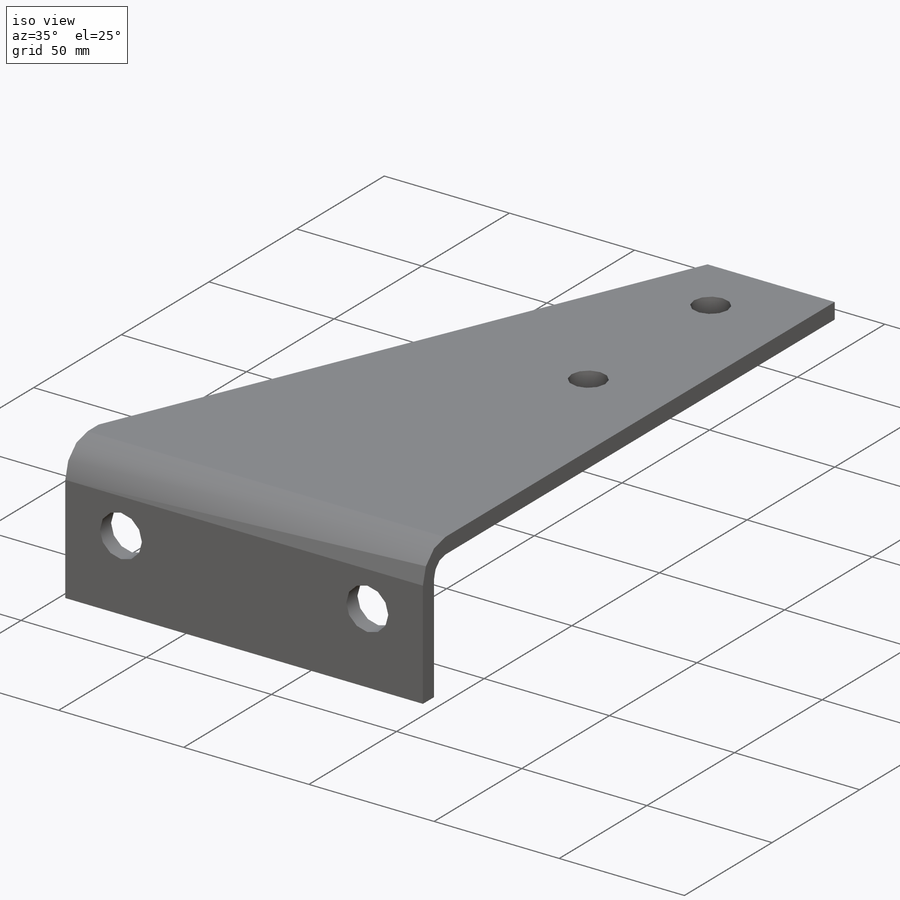
[diagram: iso view]
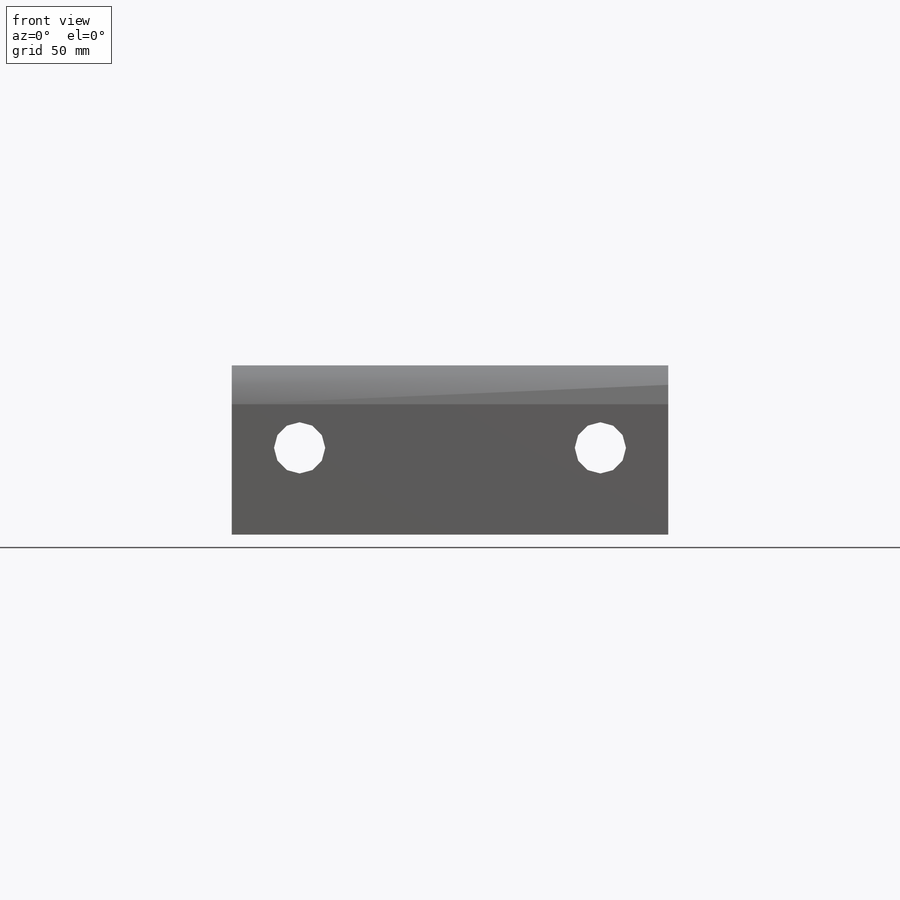
[diagram: front view]
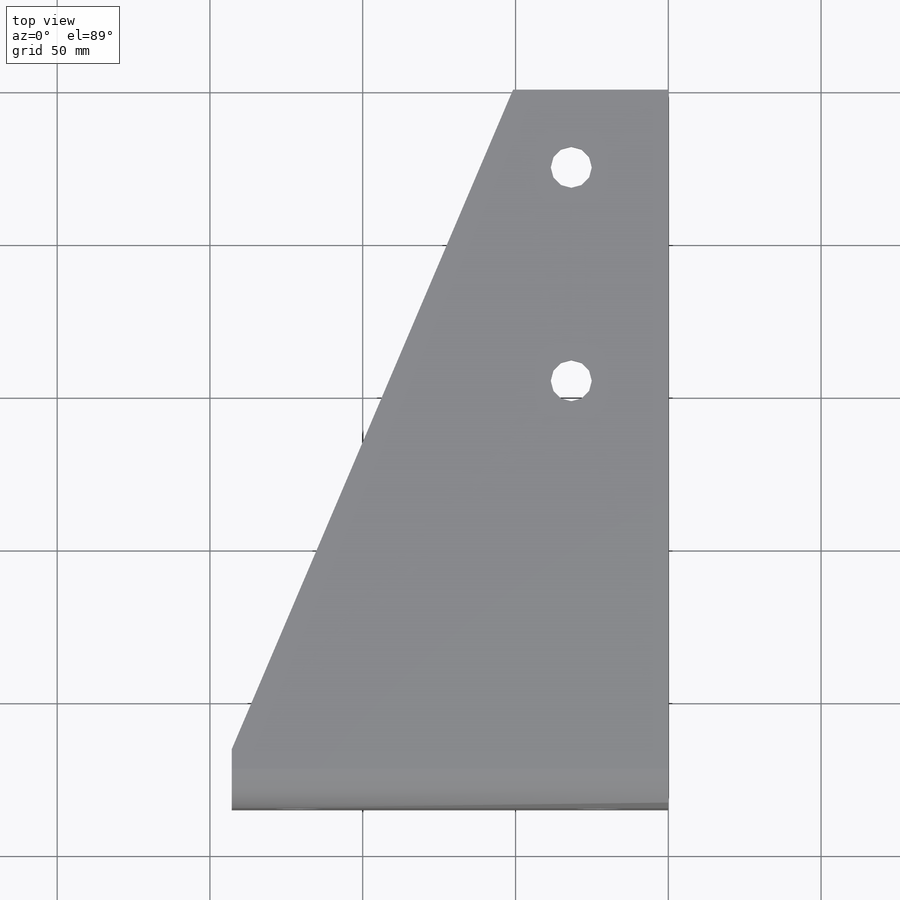
[diagram: top view]
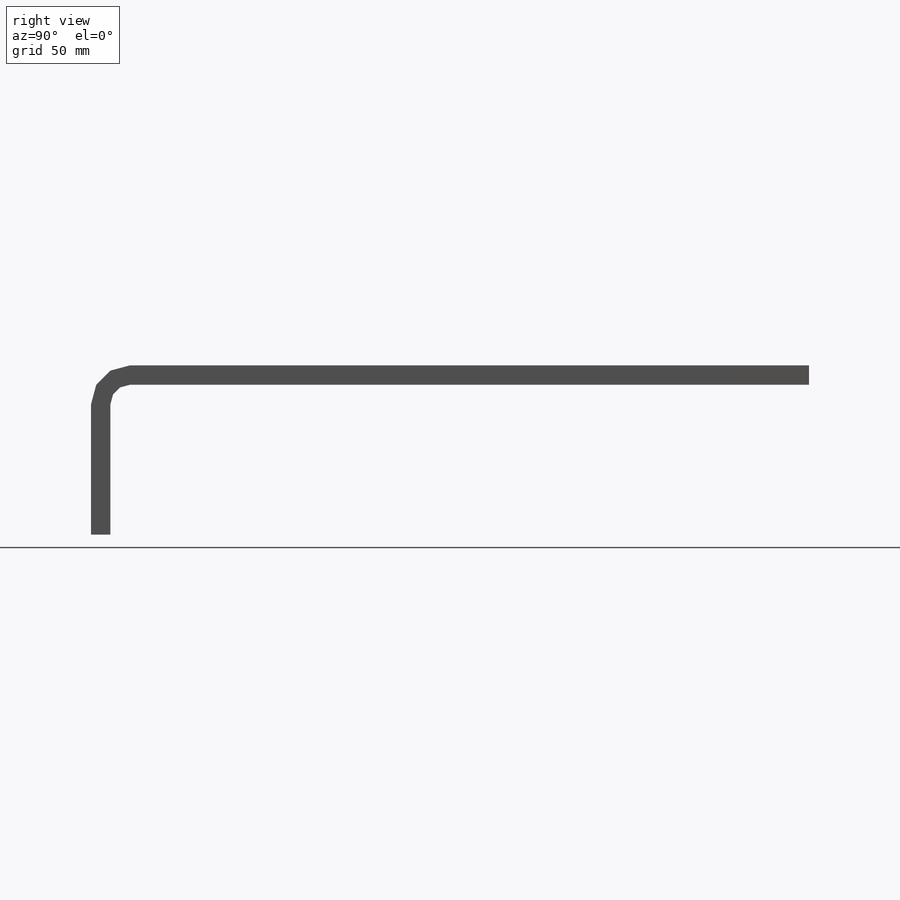
[diagram: right view]
SOLIDWORKS PART (.sldprt)
format: sldprt  version: not decoded by parser v0  size: 304,640 bytes
history: native  units: mm
features: sketch x4, cut_extrude x3, material x1, plane x1, extrude x1, mirror x1 (+11 scaffold rows collapsed)
feature tree (22):
  scaffold x11  (default folders/planes/origin — collapsed)
  material  "ASTM A36"
  plane  "Side"
  sketch  "Sketch1"  dims[c1.D5=6.35mm c1.D6=12.7mm c1.D1=6.35mm c1.D2=228.6mm c1.D3=6.35mm c1.D4=49.022mm c2.D5=133.35mm c3.D5=90.0deg]
  extrude  "Base-Extrude"  Depth=142.875mm
  sketch  "Sketch2"  dims[c1.D1=16.764mm c1.D4=16.764mm c1.D2=22.225mm c1.D3=98.425mm c2.D4=20.6375mm]
  cut_extrude  "Cut-Extrude1"  [1 undecoded]
  sketch  "Sketch3"  dims[c1.D3=13.462mm c1.D4=13.462mm c1.D5=13.462mm c1.D6=13.462mm c1.D1=19.05mm c1.D2=~135.101378mm c2.D2=35.0deg c2.D4=105.8545mm c2.D5=84.6455mm c2.D6=31.75mm c3.D2=76.2mm c3.D7=66.675mm c4.D2=~84.48675mm c4.D4=139.7mm c4.D5=69.85mm c4.D6=31.75mm c5.D2=50.8mm]
  cut_extrude  "Cut-Extrude2"  [1 undecoded]
  mirror  "Mirror All1"
  sketch  "Sketch6"  dims[D1=~59.188073mm D2=~145.193535mm]
  cut_extrude  "Cut-Extrude3"  Depth=188.214mm
decode coverage: 6 of 9 modeling features carry decoded parameters
note: ~ marks probable driven/reference dimensions
note: 2 parameter values undecoded
note: suppression state not decoded; provenance and decode notes live in map.json
